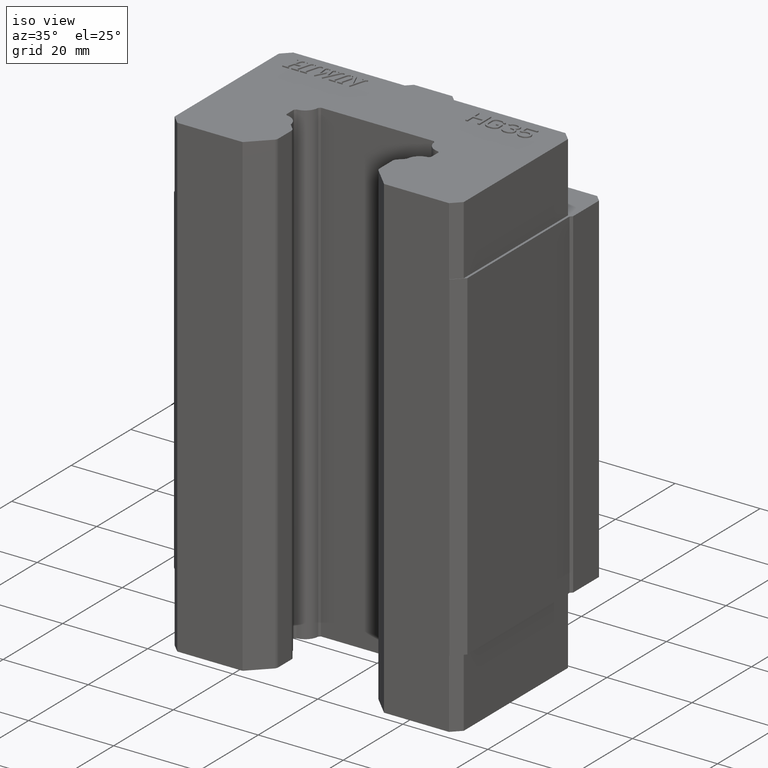
[diagram: clean part render]
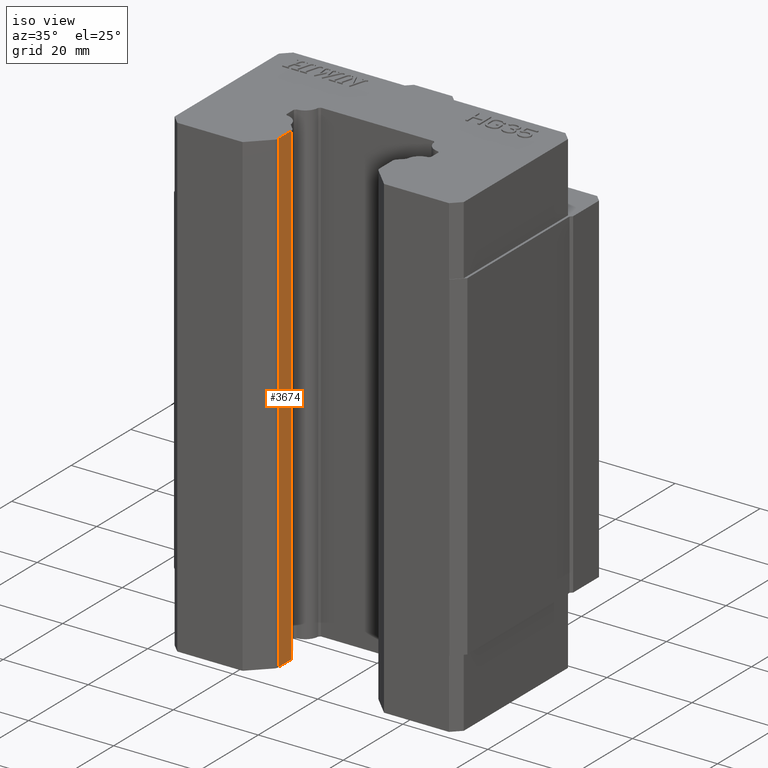
[diagram: same view with one face highlighted and labeled with its STEP entity id]
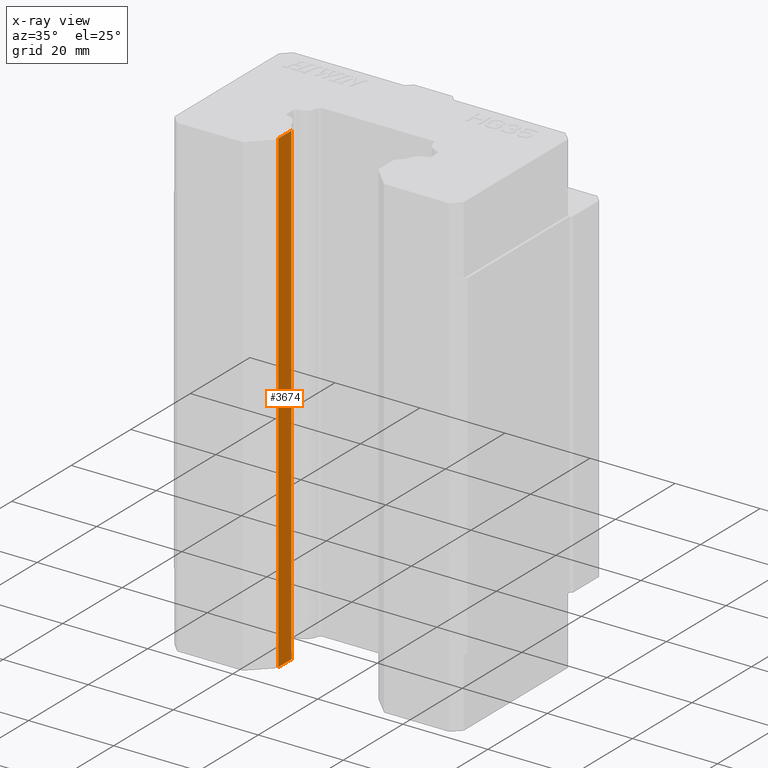
[diagram: x-ray of the same camera — body ghosted, the highlighted face saturated]
A machine part, iso view. The second image highlights one B-rep face of the part: STEP entity #3674.
The next image is the same camera in x-ray: the body ghosted, the highlighted face saturated — about 0% of this face is hidden behind the body in this view.
In plain terms, the highlighted planar face has unit normal (1, 0, 0).
Its self-contained STEP definition (entity closure, byte-faithful):
#830 = EDGE_CURVE ( 'NONE', #850, #834, #6939, .T. ) ;
#834 = VERTEX_POINT ( 'NONE', #6929 ) ;
#850 = VERTEX_POINT ( 'NONE', #6963 ) ;
#851 = VERTEX_POINT ( 'NONE', #6962 ) ;
#855 = EDGE_CURVE ( 'NONE', #851, #910, #6950, .T. ) ;
#910 = VERTEX_POINT ( 'NONE', #7060 ) ;
#3331 = ORIENTED_EDGE ( 'NONE', *, *, #855, .T. ) ;
#3335 = EDGE_CURVE ( 'NONE', #851, #834, #11857, .T. ) ;
#3669 = ORIENTED_EDGE ( 'NONE', *, *, #3335, .F. ) ;
#3670 = ORIENTED_EDGE ( 'NONE', *, *, #3672, .T. ) ;
#3671 = ORIENTED_EDGE ( 'NONE', *, *, #830, .T. ) ;
#3672 = EDGE_CURVE ( 'NONE', #910, #850, #12228, .T. ) ;
#3673 = EDGE_LOOP ( 'NONE', ( #3670, #3671, #3669, #3331 ) ) ;
#3674 = ADVANCED_FACE ( 'NONE', ( #12223 ), #12222, .T. ) ;
#6929 = CARTESIAN_POINT ( 'NONE',  ( -11.90000000000023000, -11.85847763108500000, 56.20000000000001000 ) ) ;
#6936 = DIRECTION ( 'NONE',  ( 0.0000000000000000000, 0.0000000000000000000, 1.000000000000000000 ) ) ;
#6937 = VECTOR ( 'NONE', #6936, 1000.000000000000000 ) ;
#6938 = CARTESIAN_POINT ( 'NONE',  ( -11.90000000000045900, -11.85847763109000000, -40.00000000000000000 ) ) ;
#6939 = LINE ( 'NONE', #6938, #6937 ) ;
#6950 = LINE ( 'NONE', #6956, #7012 ) ;
#6956 = CARTESIAN_POINT ( 'NONE',  ( -11.90000000000000000, -16.26154209695000200, -40.00000000000000000 ) ) ;
#6962 = CARTESIAN_POINT ( 'NONE',  ( -11.90000000000000000, -16.26154209695000200, 56.20000000000001000 ) ) ;
#6963 = CARTESIAN_POINT ( 'NONE',  ( -11.90000000000023000, -11.85847763108500000, -56.20000000000001000 ) ) ;
#7011 = DIRECTION ( 'NONE',  ( 0.0000000000000000000, 0.0000000000000000000, -1.000000000000000000 ) ) ;
#7012 = VECTOR ( 'NONE', #7011, 1000.000000000000000 ) ;
#7060 = CARTESIAN_POINT ( 'NONE',  ( -11.90000000000000000, -16.26154209695000200, -56.20000000000001000 ) ) ;
#11850 = DIRECTION ( 'NONE',  ( 0.0000000000000000000, 1.000000000000000000, 0.0000000000000000000 ) ) ;
#11851 = VECTOR ( 'NONE', #11850, 1000.000000000000000 ) ;
#11852 = CARTESIAN_POINT ( 'NONE',  ( -11.90000000000000000, 0.0000000000000000000, 56.20000000000001000 ) ) ;
#11857 = LINE ( 'NONE', #11852, #11851 ) ;
#12218 = DIRECTION ( 'NONE',  ( -1.040866124305000100E-013, 1.000000000000000000, 0.0000000000000000000 ) ) ;
#12219 = DIRECTION ( 'NONE',  ( 1.000000000000000000, 1.040866124305000100E-013, 0.0000000000000000000 ) ) ;
#12220 = CARTESIAN_POINT ( 'NONE',  ( -11.90000000000000000, -16.26154209695000200, -40.00000000000000000 ) ) ;
#12221 = AXIS2_PLACEMENT_3D ( 'NONE', #12220, #12219, #12218 ) ;
#12222 = PLANE ( 'NONE',  #12221 ) ;
#12223 = FACE_OUTER_BOUND ( 'NONE', #3673, .T. ) ;
#12224 = DIRECTION ( 'NONE',  ( 0.0000000000000000000, 1.000000000000000000, 0.0000000000000000000 ) ) ;
#12225 = VECTOR ( 'NONE', #12224, 1000.000000000000000 ) ;
#12226 = CARTESIAN_POINT ( 'NONE',  ( -11.90000000000000000, 0.0000000000000000000, -56.20000000000001000 ) ) ;
#12228 = LINE ( 'NONE', #12226, #12225 ) ;